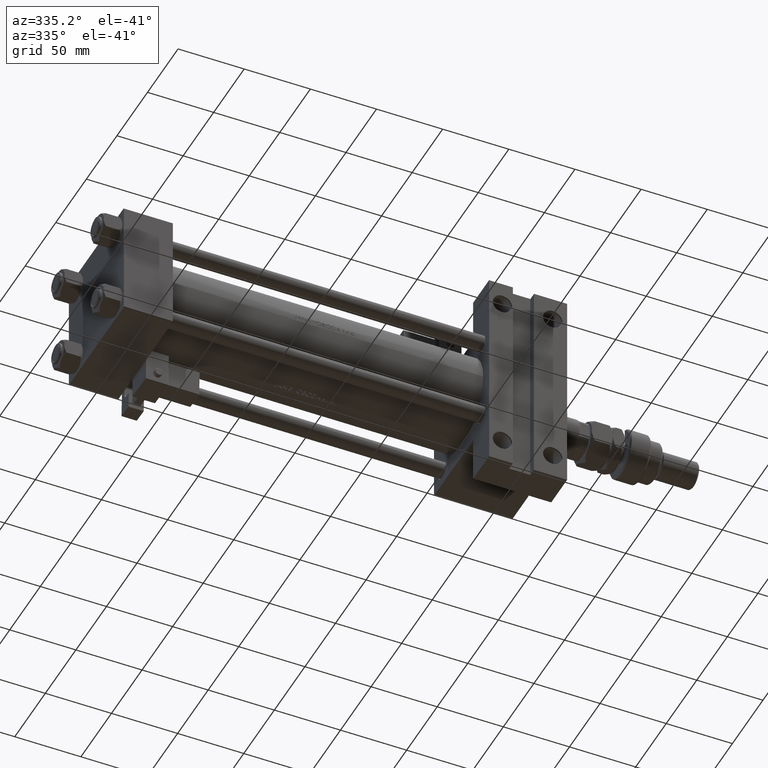
[diagram: clean part render]
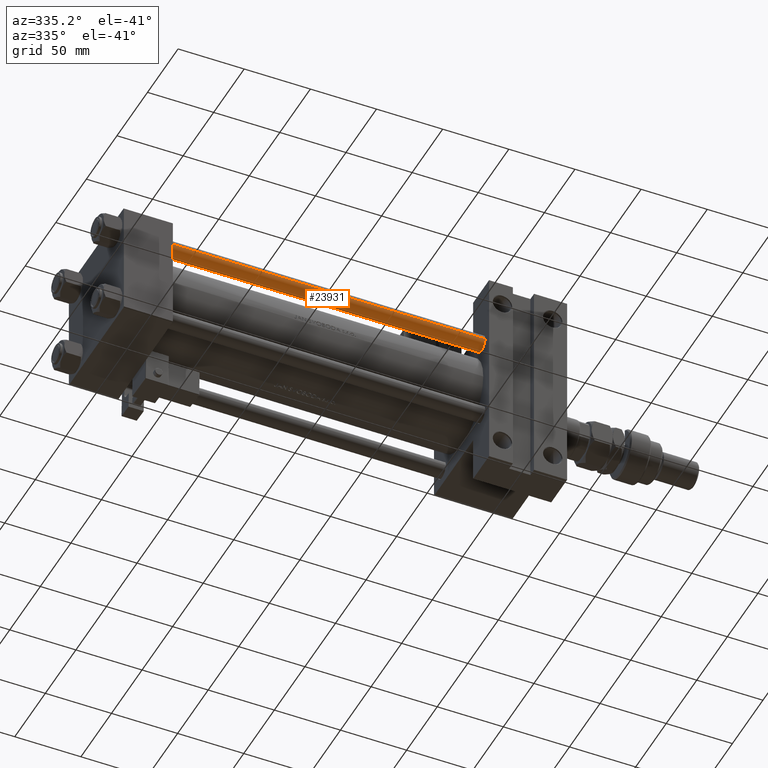
[diagram: same view with one face highlighted and labeled with its STEP entity id]
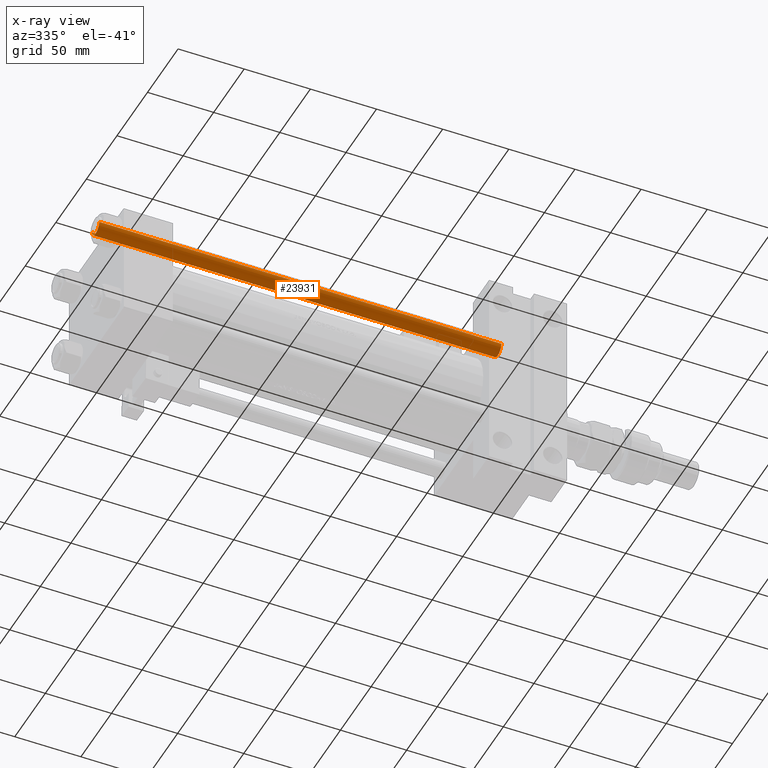
[diagram: x-ray of the same camera — body ghosted, the highlighted face saturated]
A machine part, auxiliary view. The second image highlights one B-rep face of the part: STEP entity #23931.
The next image is the same camera in x-ray: the body ghosted, the highlighted face saturated — about 0% of this face is hidden behind the body in this view.
In plain terms, the highlighted cylindrical surface (edge-blend (fillet) strip) has radius 6 mm, axis along (-1, 0, 0).
Its self-contained STEP definition (entity closure, byte-faithful):
#210 = CARTESIAN_POINT ( 'NONE',  ( 0.000000000000000000, 0.000000000000000000, 305.0000000000000000 ) ) ;
#863 = VERTEX_POINT ( 'NONE', #31922 ) ;
#1459 = AXIS2_PLACEMENT_3D ( 'NONE', #38175, #29598, #8529 ) ;
#1594 = ORIENTED_EDGE ( 'NONE', *, *, #49094, .T. ) ;
#3973 = ORIENTED_EDGE ( 'NONE', *, *, #54413, .F. ) ;
#4486 = CARTESIAN_POINT ( 'NONE',  ( -6.000000000000000888, 0.000000000000000000, 304.5000000000000000 ) ) ;
#5284 = DIRECTION ( 'NONE',  ( 0.000000000000000000, 0.000000000000000000, -1.000000000000000000 ) ) ;
#7730 = DIRECTION ( 'NONE',  ( -0.000000000000000000, -0.000000000000000000, -1.000000000000000000 ) ) ;
#8263 = DIRECTION ( 'NONE',  ( -1.000000000000000000, 0.000000000000000000, 0.000000000000000000 ) ) ;
#8529 = DIRECTION ( 'NONE',  ( 1.000000000000000000, 0.000000000000000000, 0.000000000000000000 ) ) ;
#9431 = CARTESIAN_POINT ( 'NONE',  ( 0.000000000000000000, 0.000000000000000000, 304.5000000000000000 ) ) ;
#9648 = VECTOR ( 'NONE', #7730, 1000.000000000000000 ) ;
#13136 = LINE ( 'NONE', #30036, #35126 ) ;
#13880 = DIRECTION ( 'NONE',  ( 1.000000000000000000, 0.000000000000000000, 0.000000000000000000 ) ) ;
#16084 = CIRCLE ( 'NONE', #40854, 6.000000000000000888 ) ;
#17168 = EDGE_CURVE ( 'NONE', #24774, #863, #25403, .T. ) ;
#19331 = AXIS2_PLACEMENT_3D ( 'NONE', #210, #29858, #8263 ) ;
#22312 = FACE_OUTER_BOUND ( 'NONE', #38456, .T. ) ;
#23036 = ORIENTED_EDGE ( 'NONE', *, *, #17168, .T. ) ;
#23931 = ADVANCED_FACE ( 'NONE', ( #22312 ), #46447, .T. ) ;
#24774 = VERTEX_POINT ( 'NONE', #38190 ) ;
#25403 = CIRCLE ( 'NONE', #1459, 6.000000000000000888 ) ;
#27877 = CARTESIAN_POINT ( 'NONE',  ( 6.000000000000000888, 7.347880794884120722E-16, 304.5000000000000000 ) ) ;
#29598 = DIRECTION ( 'NONE',  ( -0.000000000000000000, -0.000000000000000000, 1.000000000000000000 ) ) ;
#29858 = DIRECTION ( 'NONE',  ( -0.000000000000000000, -0.000000000000000000, -1.000000000000000000 ) ) ;
#30036 = CARTESIAN_POINT ( 'NONE',  ( 6.000000000000000888, 7.347880794884120722E-16, 305.0000000000000000 ) ) ;
#31922 = CARTESIAN_POINT ( 'NONE',  ( -6.000000000000000888, 0.000000000000000000, 0.5000000000000004441 ) ) ;
#33845 = EDGE_CURVE ( 'NONE', #34761, #45806, #16084, .T. ) ;
#34761 = VERTEX_POINT ( 'NONE', #4486 ) ;
#35126 = VECTOR ( 'NONE', #46902, 1000.000000000000000 ) ;
#38175 = CARTESIAN_POINT ( 'NONE',  ( 0.000000000000000000, 0.000000000000000000, 0.5000000000000004441 ) ) ;
#38190 = CARTESIAN_POINT ( 'NONE',  ( 6.000000000000000888, 7.347880794884120722E-16, 0.5000000000000004441 ) ) ;
#38456 = EDGE_LOOP ( 'NONE', ( #45155, #1594, #23036, #3973 ) ) ;
#40854 = AXIS2_PLACEMENT_3D ( 'NONE', #9431, #5284, #13880 ) ;
#45155 = ORIENTED_EDGE ( 'NONE', *, *, #33845, .T. ) ;
#45806 = VERTEX_POINT ( 'NONE', #27877 ) ;
#45925 = CARTESIAN_POINT ( 'NONE',  ( -6.000000000000000888, 0.000000000000000000, 305.0000000000000000 ) ) ;
#46447 = CYLINDRICAL_SURFACE ( 'NONE', #19331, 6.000000000000000888 ) ;
#46902 = DIRECTION ( 'NONE',  ( -0.000000000000000000, -0.000000000000000000, -1.000000000000000000 ) ) ;
#49094 = EDGE_CURVE ( 'NONE', #45806, #24774, #13136, .T. ) ;
#50355 = LINE ( 'NONE', #45925, #9648 ) ;
#54413 = EDGE_CURVE ( 'NONE', #34761, #863, #50355, .T. ) ;